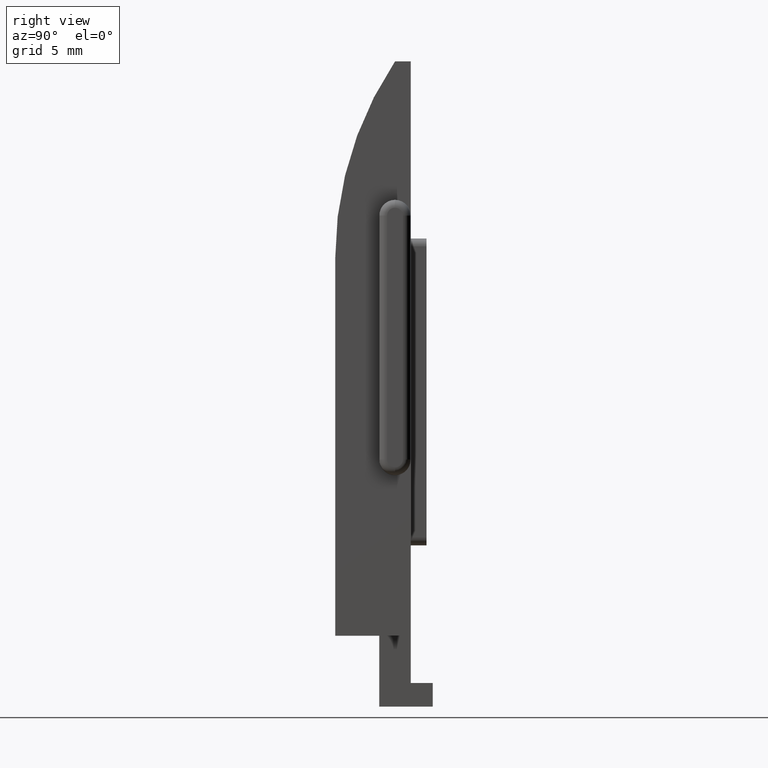
[diagram: clean part render]
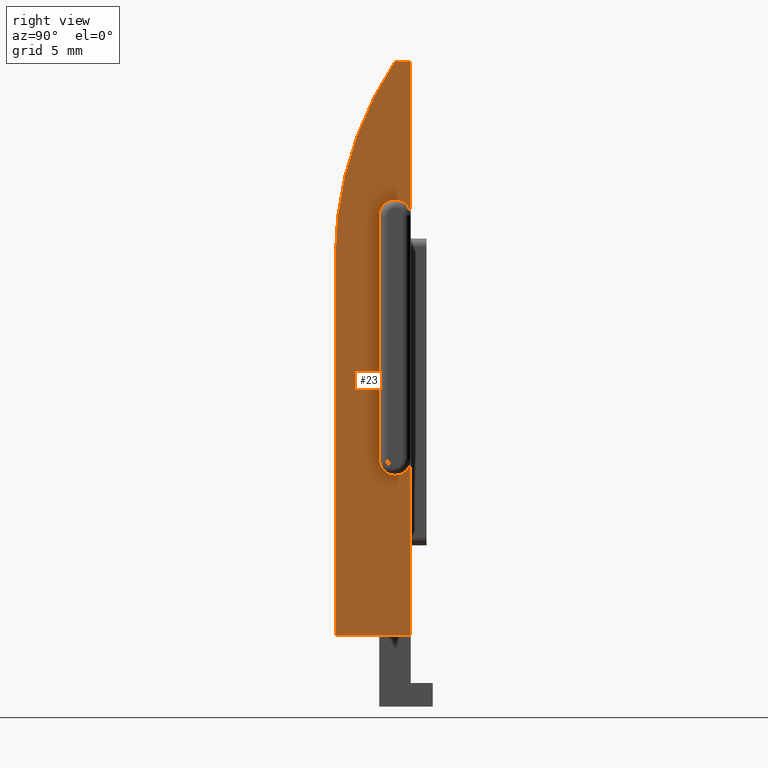
[diagram: same view with one face highlighted and labeled with its STEP entity id]
A machine part, right view. The second image highlights one B-rep face of the part: STEP entity #23.
In plain terms, the highlighted planar face has unit normal (1, 0, 0).
Its self-contained STEP definition (entity closure, byte-faithful):
#23 = ADVANCED_FACE ( 'NONE', ( #8453 ), #8015, .T. ) ;
#169 = EDGE_CURVE ( 'NONE', #9250, #3781, #9323, .T. ) ;
#218 = VERTEX_POINT ( 'NONE', #3381 ) ;
#463 = VECTOR ( 'NONE', #2138, 1000.000000000000000 ) ;
#516 = CARTESIAN_POINT ( 'NONE',  ( 8.750000000000000000, 22.50000000000000000, 23.99760614430637100 ) ) ;
#538 = DIRECTION ( 'NONE',  ( 1.000000000000000000, 0.0000000000000000000, 0.0000000000000000000 ) ) ;
#544 = VERTEX_POINT ( 'NONE', #7428 ) ;
#554 = DIRECTION ( 'NONE',  ( 0.0000000000000000000, 0.0000000000000000000, -1.000000000000000000 ) ) ;
#620 = AXIS2_PLACEMENT_3D ( 'NONE', #516, #5328, #554 ) ;
#754 = DIRECTION ( 'NONE',  ( 0.0000000000000000000, 0.0000000000000000000, -1.000000000000000000 ) ) ;
#917 = EDGE_CURVE ( 'NONE', #9369, #7729, #7281, .T. ) ;
#944 = CARTESIAN_POINT ( 'NONE',  ( 8.750000000000000000, 4.799999999999995400, 26.71000000000000100 ) ) ;
#998 = CARTESIAN_POINT ( 'NONE',  ( 8.750000000000000000, 2.800000000000002000, 11.21000000000000100 ) ) ;
#1022 = DIRECTION ( 'NONE',  ( 0.0000000000000000000, 1.000000000000000000, 0.0000000000000000000 ) ) ;
#1149 = CIRCLE ( 'NONE', #7698, 0.9999999999999974500 ) ;
#1244 = AXIS2_PLACEMENT_3D ( 'NONE', #1960, #4274, #1891 ) ;
#1284 = VERTEX_POINT ( 'NONE', #998 ) ;
#1397 = DIRECTION ( 'NONE',  ( 0.0000000000000000000, 0.0000000000000000000, -1.000000000000000000 ) ) ;
#1514 = CARTESIAN_POINT ( 'NONE',  ( 8.750000000000000000, 3.799999999999994500, 36.50999999999999800 ) ) ;
#1679 = CARTESIAN_POINT ( 'NONE',  ( 8.750000000000000000, 0.0000000000000000000, 23.99760614430637400 ) ) ;
#1774 = ORIENTED_EDGE ( 'NONE', *, *, #917, .T. ) ;
#1830 = CARTESIAN_POINT ( 'NONE',  ( 8.750000000000000000, 0.0000000000000000000, 0.0000000000000000000 ) ) ;
#1891 = DIRECTION ( 'NONE',  ( 0.0000000000000000000, 0.0000000000000000000, -1.000000000000000000 ) ) ;
#1960 = CARTESIAN_POINT ( 'NONE',  ( 8.750000000000000000, 3.799999999999999400, 11.21000000000000100 ) ) ;
#2138 = DIRECTION ( 'NONE',  ( 0.0000000000000000000, -1.000000000000000000, 0.0000000000000000000 ) ) ;
#2347 = CARTESIAN_POINT ( 'NONE',  ( 8.750000000000000000, 22.50000000000000000, 23.99760614430637100 ) ) ;
#2566 = DIRECTION ( 'NONE',  ( 0.0000000000000000000, -1.317178037947461600E-016, 1.000000000000000000 ) ) ;
#2635 = LINE ( 'NONE', #4514, #463 ) ;
#2675 = VECTOR ( 'NONE', #9363, 1000.000000000000000 ) ;
#2924 = ORIENTED_EDGE ( 'NONE', *, *, #4115, .T. ) ;
#3149 = LINE ( 'NONE', #3215, #5826 ) ;
#3173 = DIRECTION ( 'NONE',  ( 1.000000000000000000, 0.0000000000000000000, 0.0000000000000000000 ) ) ;
#3174 = CARTESIAN_POINT ( 'NONE',  ( 8.750000000000000000, 0.0000000000000000000, 23.99760614430637100 ) ) ;
#3215 = CARTESIAN_POINT ( 'NONE',  ( 8.750000000000000000, 2.800000000000000300, 26.71000000000000100 ) ) ;
#3381 = CARTESIAN_POINT ( 'NONE',  ( 8.750000000000000000, 2.800000000000000300, 26.71000000000000100 ) ) ;
#3491 = EDGE_CURVE ( 'NONE', #9734, #10095, #4931, .T. ) ;
#3558 = CARTESIAN_POINT ( 'NONE',  ( 8.750000000000000000, 4.799999999999999800, -2.999999999999999100 ) ) ;
#3744 = DIRECTION ( 'NONE',  ( 0.0000000000000000000, 0.0000000000000000000, -1.000000000000000000 ) ) ;
#3781 = VERTEX_POINT ( 'NONE', #10371 ) ;
#3925 = CIRCLE ( 'NONE', #1244, 0.9999999999999974500 ) ;
#4049 = EDGE_CURVE ( 'NONE', #3781, #4184, #2635, .T. ) ;
#4115 = EDGE_CURVE ( 'NONE', #4184, #9734, #9204, .T. ) ;
#4126 = ORIENTED_EDGE ( 'NONE', *, *, #7987, .T. ) ;
#4184 = VERTEX_POINT ( 'NONE', #1514 ) ;
#4212 = AXIS2_PLACEMENT_3D ( 'NONE', #2347, #3173, #754 ) ;
#4274 = DIRECTION ( 'NONE',  ( 1.000000000000000000, 0.0000000000000000000, 0.0000000000000000000 ) ) ;
#4449 = VECTOR ( 'NONE', #2566, 1000.000000000000000 ) ;
#4461 = AXIS2_PLACEMENT_3D ( 'NONE', #5390, #8776, #3744 ) ;
#4514 = CARTESIAN_POINT ( 'NONE',  ( 8.750000000000000000, 4.799999999999994500, 36.50999999999999800 ) ) ;
#4603 = ORIENTED_EDGE ( 'NONE', *, *, #6114, .F. ) ;
#4759 = EDGE_LOOP ( 'NONE', ( #4818, #8900, #9692, #2924, #6474, #4126, #1774, #4603, #7305, #4886 ) ) ;
#4818 = ORIENTED_EDGE ( 'NONE', *, *, #7358, .F. ) ;
#4886 = ORIENTED_EDGE ( 'NONE', *, *, #5242, .F. ) ;
#4903 = DIRECTION ( 'NONE',  ( 0.0000000000000000000, 1.119176436114069100E-016, -1.000000000000000000 ) ) ;
#4931 = LINE ( 'NONE', #3174, #5952 ) ;
#5007 = CARTESIAN_POINT ( 'NONE',  ( 8.750000000000000000, 4.799999999999999800, -2.999999999999999100 ) ) ;
#5242 = EDGE_CURVE ( 'NONE', #544, #218, #1149, .T. ) ;
#5328 = DIRECTION ( 'NONE',  ( 1.000000000000000000, 0.0000000000000000000, 0.0000000000000000000 ) ) ;
#5390 = CARTESIAN_POINT ( 'NONE',  ( 8.750000000000000000, 3.799999999999999400, 26.71000000000000100 ) ) ;
#5623 = DIRECTION ( 'NONE',  ( 0.0000000000000000000, 0.0000000000000000000, -1.000000000000000000 ) ) ;
#5826 = VECTOR ( 'NONE', #4903, 1000.000000000000000 ) ;
#5952 = VECTOR ( 'NONE', #5623, 1000.000000000000000 ) ;
#6114 = EDGE_CURVE ( 'NONE', #1284, #7729, #3925, .T. ) ;
#6474 = ORIENTED_EDGE ( 'NONE', *, *, #3491, .T. ) ;
#6885 = EDGE_CURVE ( 'NONE', #218, #1284, #3149, .T. ) ;
#7067 = CARTESIAN_POINT ( 'NONE',  ( 8.750000000000000000, 3.799999999999999400, 26.71000000000000100 ) ) ;
#7281 = LINE ( 'NONE', #3558, #2675 ) ;
#7305 = ORIENTED_EDGE ( 'NONE', *, *, #6885, .F. ) ;
#7358 = EDGE_CURVE ( 'NONE', #9250, #544, #9042, .T. ) ;
#7428 = CARTESIAN_POINT ( 'NONE',  ( 8.750000000000000000, 3.799999999999999400, 27.70999999999999700 ) ) ;
#7698 = AXIS2_PLACEMENT_3D ( 'NONE', #7067, #538, #1397 ) ;
#7729 = VERTEX_POINT ( 'NONE', #9641 ) ;
#7987 = EDGE_CURVE ( 'NONE', #10095, #9369, #8410, .T. ) ;
#8011 = CARTESIAN_POINT ( 'NONE',  ( 8.750000000000000000, 0.0000000000000000000, 0.0000000000000000000 ) ) ;
#8015 = PLANE ( 'NONE',  #4212 ) ;
#8410 = LINE ( 'NONE', #1830, #10153 ) ;
#8453 = FACE_OUTER_BOUND ( 'NONE', #4759, .T. ) ;
#8776 = DIRECTION ( 'NONE',  ( 1.000000000000000000, 0.0000000000000000000, 0.0000000000000000000 ) ) ;
#8900 = ORIENTED_EDGE ( 'NONE', *, *, #169, .T. ) ;
#9042 = CIRCLE ( 'NONE', #4461, 0.9999999999999974500 ) ;
#9204 = CIRCLE ( 'NONE', #620, 22.50000000000000000 ) ;
#9250 = VERTEX_POINT ( 'NONE', #944 ) ;
#9323 = LINE ( 'NONE', #5007, #4449 ) ;
#9363 = DIRECTION ( 'NONE',  ( 0.0000000000000000000, -1.317178037947461600E-016, 1.000000000000000000 ) ) ;
#9369 = VERTEX_POINT ( 'NONE', #10300 ) ;
#9641 = CARTESIAN_POINT ( 'NONE',  ( 8.750000000000000000, 4.799999999999998000, 11.21000000000000100 ) ) ;
#9692 = ORIENTED_EDGE ( 'NONE', *, *, #4049, .T. ) ;
#9734 = VERTEX_POINT ( 'NONE', #1679 ) ;
#10095 = VERTEX_POINT ( 'NONE', #8011 ) ;
#10153 = VECTOR ( 'NONE', #1022, 1000.000000000000000 ) ;
#10300 = CARTESIAN_POINT ( 'NONE',  ( 8.750000000000000000, 4.799999999999999800, 0.0000000000000000000 ) ) ;
#10371 = CARTESIAN_POINT ( 'NONE',  ( 8.750000000000000000, 4.799999999999994500, 36.50999999999999800 ) ) ;